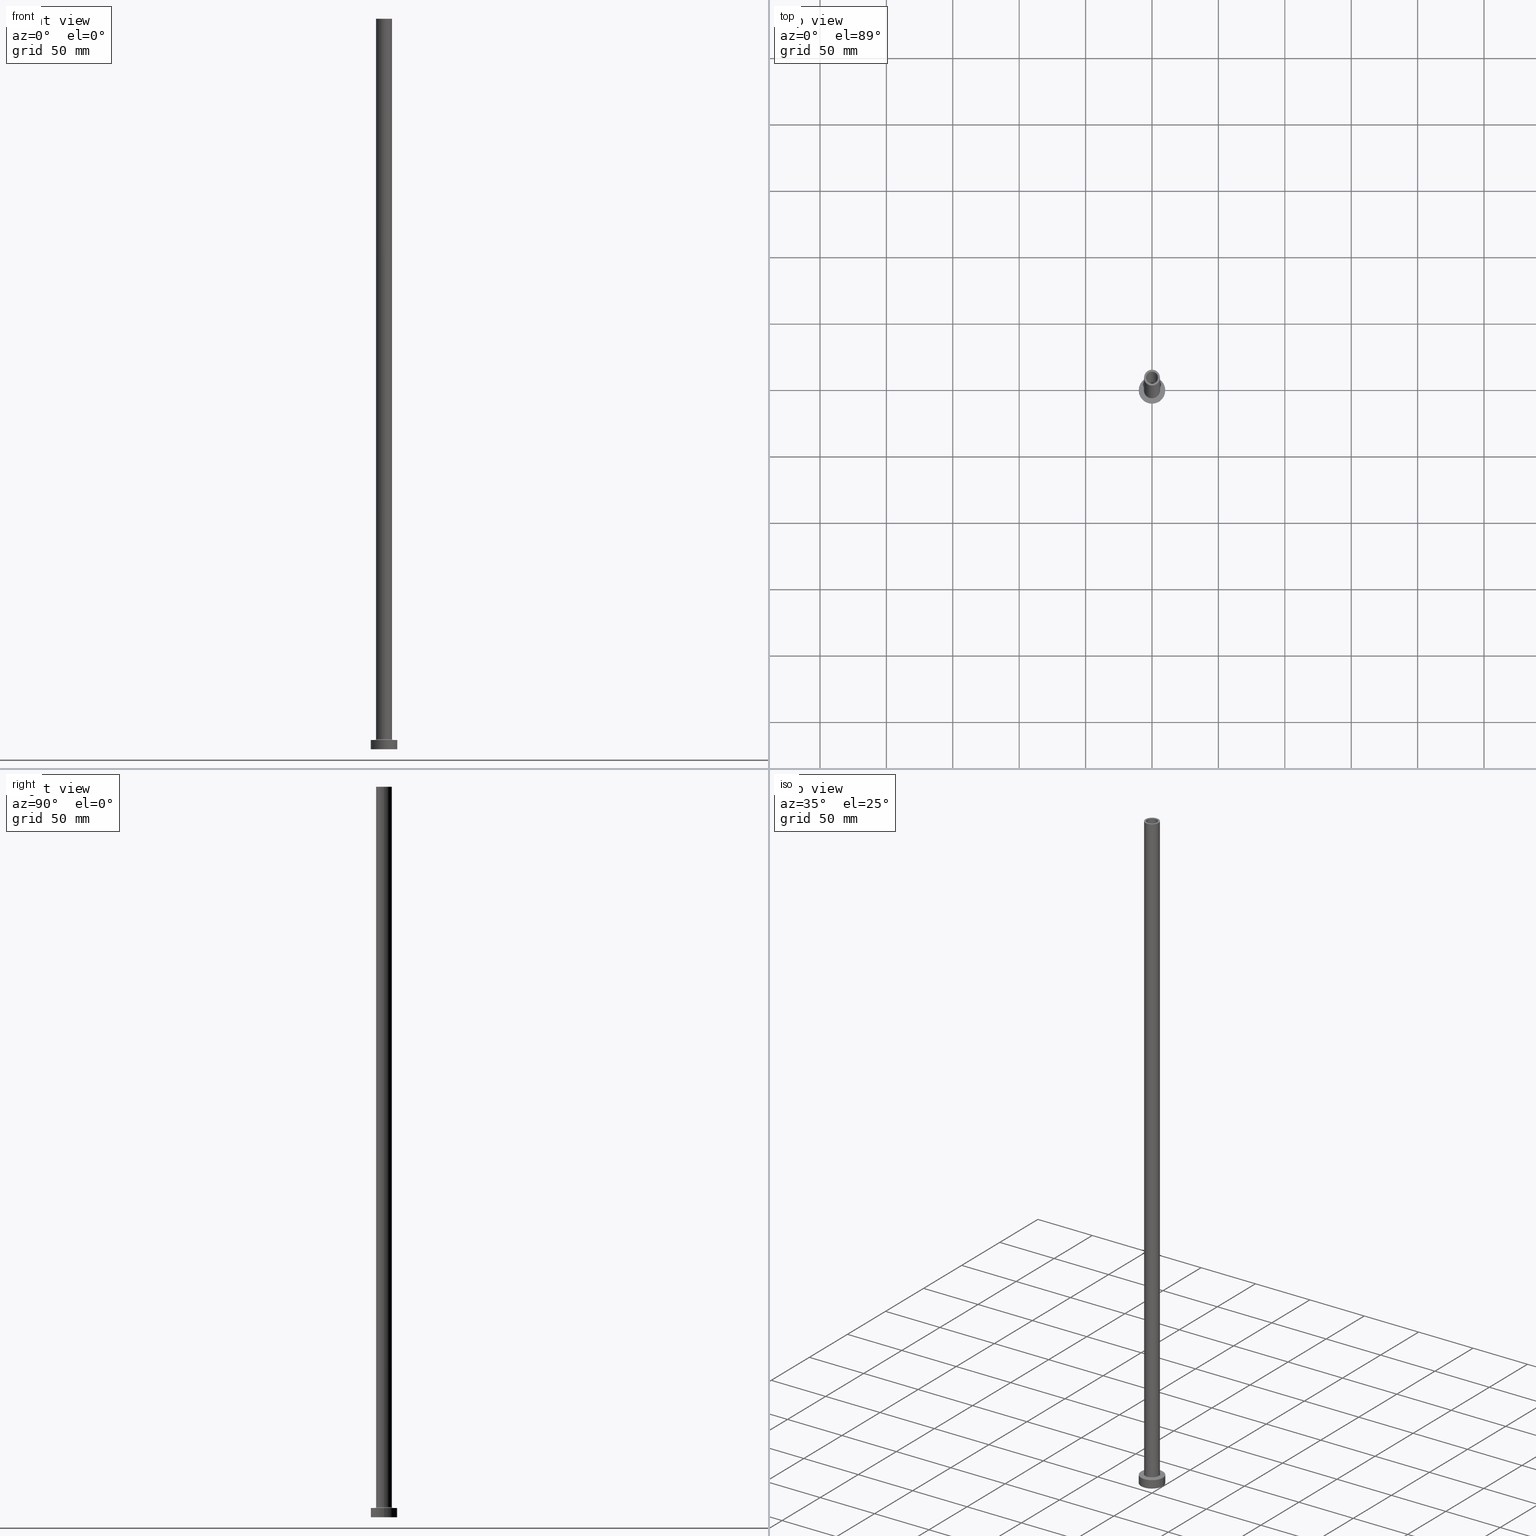
[diagram: canonical four-view strip — front | top / right | iso, engineering-drawing reading convention]
A machine part, canonical four-view strip (front | top / right | iso — engineering-drawing reading convention). The complete STEP part file that produces these views, byte-faithful:
ISO-10303-21;
HEADER;
FILE_DESCRIPTION (( 'STEP AP203' ),
    '1' );
FILE_NAME ('14af.STEP',
    '2023-02-13T11:00:32',
    ( '' ),
    ( '' ),
    'SwSTEP 2.0',
    'SolidWorks 2019',
    '' );
FILE_SCHEMA (( 'CONFIG_CONTROL_DESIGN' ));
ENDSEC;

DATA;
#1 = APPROVAL ( #42, 'NEUR�EN�' ) ;
#2 = DIRECTION ( 'NONE',  ( -1.000000000000000000, 0.000000000000000000, 0.000000000000000000 ) ) ;
#3 = ORIENTED_EDGE ( 'NONE', *, *, #52, .T. ) ;
#4 = DIRECTION ( 'NONE',  ( 0.000000000000000000, 0.000000000000000000, 1.000000000000000000 ) ) ;
#5 = AXIS2_PLACEMENT_3D ( 'NONE', #289, #68, #391 ) ;
#6 = AXIS2_PLACEMENT_3D ( 'NONE', #76, #360, #112 ) ;
#7 = PERSON_AND_ORGANIZATION ( #422, #248 ) ;
#8 = ADVANCED_FACE ( 'NONE', ( #392 ), #425, .F. ) ;
#9 = VERTEX_POINT ( 'NONE', #423 ) ;
#10 = DIRECTION ( 'NONE',  ( 1.000000000000000000, 0.000000000000000000, 0.000000000000000000 ) ) ;
#11 = DATE_TIME_ROLE ( 'classification_date' ) ;
#12 = DIRECTION ( 'NONE',  ( 0.000000000000000000, 0.000000000000000000, 1.000000000000000000 ) ) ;
#13 = CARTESIAN_POINT ( 'NONE',  ( 0.000000000000000000, 0.000000000000000000, 7.700000000000040146 ) ) ;
#14 = AXIS2_PLACEMENT_3D ( 'NONE', #55, #224, #442 ) ;
#15 = AXIS2_PLACEMENT_3D ( 'NONE', #437, #370, #265 ) ;
#16 = DIRECTION ( 'NONE',  ( 0.000000000000000000, 0.000000000000000000, -1.000000000000000000 ) ) ;
#17 = EDGE_CURVE ( 'NONE', #28, #147, #372, .T. ) ;
#18 = LINE ( 'NONE', #133, #216 ) ;
#19 = CARTESIAN_POINT ( 'NONE',  ( 0.000000000000000000, 0.000000000000000000, 7.000000000000000000 ) ) ;
#20 = EDGE_CURVE ( 'NONE', #378, #431, #281, .T. ) ;
#21 = AXIS2_PLACEMENT_3D ( 'NONE', #421, #320, #322 ) ;
#22 = DIRECTION ( 'NONE',  ( 1.000000000000000000, 0.000000000000000000, 0.000000000000000000 ) ) ;
#23 = DIRECTION ( 'NONE',  ( 1.000000000000000000, 0.000000000000000000, 0.000000000000000000 ) ) ;
#24 = CYLINDRICAL_SURFACE ( 'NONE', #424, 4.500000000000000000 ) ;
#25 = ADVANCED_BREP_SHAPE_REPRESENTATION ( '14af', ( #275, #447 ), #236 ) ;
#26 = APPROVAL_ROLE ( '' ) ;
#27 = CIRCLE ( 'NONE', #297, 4.650000000000000355 ) ;
#28 = VERTEX_POINT ( 'NONE', #105 ) ;
#29 = ADVANCED_FACE ( 'NONE', ( #209 ), #217, .T. ) ;
#30 = APPLICATION_CONTEXT ( 'configuration controlled 3d designs of mechanical parts and assemblies' ) ;
#31 = DIRECTION ( 'NONE',  ( 1.224646799147353207E-16, 1.000000000000000000, -0.000000000000000000 ) ) ;
#32 = CARTESIAN_POINT ( 'NONE',  ( 0.000000000000000000, 0.000000000000000000, 7.000000000000000000 ) ) ;
#33 = EDGE_CURVE ( 'NONE', #376, #28, #453, .T. ) ;
#34 = DIRECTION ( 'NONE',  ( -0.000000000000000000, -0.000000000000000000, -1.000000000000000000 ) ) ;
#35 = AXIS2_PLACEMENT_3D ( 'NONE', #71, #396, #174 ) ;
#36 = CIRCLE ( 'NONE', #188, 6.700000000000001066 ) ;
#37 = LOCAL_TIME ( 12, 0, 32.00000000000000000, #109 ) ;
#38 = DESIGN_CONTEXT ( 'detailed design', #30, 'design' ) ;
#39 = CARTESIAN_POINT ( 'NONE',  ( 4.650000000000000355, 5.694607616035192869E-16, 505.0000000000000000 ) ) ;
#40 = DIRECTION ( 'NONE',  ( 0.000000000000000000, 0.000000000000000000, 1.000000000000000000 ) ) ;
#41 = APPROVAL ( #337, 'NEUR�EN�' ) ;
#42 = APPROVAL_STATUS ( 'not_yet_approved' ) ;
#43 = VERTEX_POINT ( 'NONE', #148 ) ;
#44 = CARTESIAN_POINT ( 'NONE',  ( 6.000000000000000888, 7.347880794884120722E-16, 550.0000000000000000 ) ) ;
#45 = ORIENTED_EDGE ( 'NONE', *, *, #252, .F. ) ;
#46 = TOROIDAL_SURFACE ( 'NONE', #196, 6.700000000000001066, 0.6999999999999999556 ) ;
#47 = PERSON_AND_ORGANIZATION ( #422, #248 ) ;
#48 = CC_DESIGN_APPROVAL ( #1, ( #362 ) ) ;
#49 = FACE_BOUND ( 'NONE', #171, .T. ) ;
#50 = DIRECTION ( 'NONE',  ( 0.000000000000000000, 0.000000000000000000, 1.000000000000000000 ) ) ;
#51 = ORIENTED_EDGE ( 'NONE', *, *, #408, .F. ) ;
#52 = EDGE_CURVE ( 'NONE', #327, #378, #354, .T. ) ;
#53 = PLANE ( 'NONE',  #15 ) ;
#54 = AXIS2_PLACEMENT_3D ( 'NONE', #459, #72, #144 ) ;
#55 = CARTESIAN_POINT ( 'NONE',  ( 0.000000000000000000, 0.000000000000000000, 7.000000000000000000 ) ) ;
#56 = LINE ( 'NONE', #94, #228 ) ;
#57 = ADVANCED_FACE ( 'NONE', ( #457, #177 ), #108, .F. ) ;
#58 = DIRECTION ( 'NONE',  ( -0.000000000000000000, -0.000000000000000000, -1.000000000000000000 ) ) ;
#59 = AXIS2_PLACEMENT_3D ( 'NONE', #13, #162, #234 ) ;
#60 = DIRECTION ( 'NONE',  ( 0.000000000000000000, 0.000000000000000000, 1.000000000000000000 ) ) ;
#61 = DIRECTION ( 'NONE',  ( 1.000000000000000000, 0.000000000000000000, 0.000000000000000000 ) ) ;
#62 = ORIENTED_EDGE ( 'NONE', *, *, #262, .T. ) ;
#63 = COORDINATED_UNIVERSAL_TIME_OFFSET ( 1, 0, .AHEAD. ) ;
#64 = PRODUCT_RELATED_PRODUCT_CATEGORY ( 'detail', '', ( #415 ) ) ;
#65 = ORIENTED_EDGE ( 'NONE', *, *, #180, .F. ) ;
#66 = AXIS2_PLACEMENT_3D ( 'NONE', #456, #245, #2 ) ;
#67 = FACE_OUTER_BOUND ( 'NONE', #231, .T. ) ;
#68 = DIRECTION ( 'NONE',  ( 0.000000000000000000, 0.000000000000000000, -1.000000000000000000 ) ) ;
#69 = EDGE_LOOP ( 'NONE', ( #273, #3, #183, #206 ) ) ;
#70 = EDGE_CURVE ( 'NONE', #214, #142, #172, .T. ) ;
#71 = CARTESIAN_POINT ( 'NONE',  ( 6.700000000000001066, 0.000000000000000000, 7.700000000000040146 ) ) ;
#72 = DIRECTION ( 'NONE',  ( 0.000000000000000000, 0.000000000000000000, 1.000000000000000000 ) ) ;
#73 = TOROIDAL_SURFACE ( 'NONE', #59, 6.700000000000001066, 0.6999999999999999556 ) ;
#74 = DATE_AND_TIME ( #182, #37 ) ;
#75 = EDGE_LOOP ( 'NONE', ( #222, #292, #282, #325 ) ) ;
#76 = CARTESIAN_POINT ( 'NONE',  ( 0.000000000000000000, 0.000000000000000000, 505.0000000000000000 ) ) ;
#77 = APPROVAL_DATE_TIME ( #219, #41 ) ;
#78 = DIRECTION ( 'NONE',  ( 0.000000000000000000, 0.000000000000000000, 1.000000000000000000 ) ) ;
#79 = DATE_AND_TIME ( #400, #382 ) ;
#80 = CARTESIAN_POINT ( 'NONE',  ( 0.000000000000000000, 0.000000000000000000, 505.0000000000000000 ) ) ;
#81 = VECTOR ( 'NONE', #34, 1000.000000000000000 ) ;
#82 = CARTESIAN_POINT ( 'NONE',  ( 0.000000000000000000, 0.000000000000000000, 0.000000000000000000 ) ) ;
#83 = ORIENTED_EDGE ( 'NONE', *, *, #332, .F. ) ;
#84 = EDGE_CURVE ( 'NONE', #376, #101, #351, .T. ) ;
#85 = DIRECTION ( 'NONE',  ( 0.000000000000000000, 0.000000000000000000, 1.000000000000000000 ) ) ;
#86 = VERTEX_POINT ( 'NONE', #39 ) ;
#87 = CARTESIAN_POINT ( 'NONE',  ( 0.000000000000000000, 0.000000000000000000, 0.000000000000000000 ) ) ;
#88 = EDGE_LOOP ( 'NONE', ( #240, #369, #193, #161 ) ) ;
#89 = AXIS2_PLACEMENT_3D ( 'NONE', #385, #90, #316 ) ;
#90 = DIRECTION ( 'NONE',  ( 0.000000000000000000, 0.000000000000000000, 1.000000000000000000 ) ) ;
#91 = EDGE_CURVE ( 'NONE', #101, #147, #36, .T. ) ;
#92 = ORIENTED_EDGE ( 'NONE', *, *, #430, .F. ) ;
#93 = CARTESIAN_POINT ( 'NONE',  ( 0.000000000000000000, 0.000000000000000000, 550.0000000000000000 ) ) ;
#94 = CARTESIAN_POINT ( 'NONE',  ( -10.00000000000000000, 0.000000000000000000, 7.000000000000000000 ) ) ;
#95 = AXIS2_PLACEMENT_3D ( 'NONE', #243, #443, #132 ) ;
#96 = FACE_OUTER_BOUND ( 'NONE', #184, .T. ) ;
#97 = ADVANCED_FACE ( 'NONE', ( #103 ), #329, .F. ) ;
#98 = CARTESIAN_POINT ( 'NONE',  ( 0.000000000000000000, 0.000000000000000000, 0.000000000000000000 ) ) ;
#99 = COORDINATED_UNIVERSAL_TIME_OFFSET ( 1, 0, .AHEAD. ) ;
#100 = DIRECTION ( 'NONE',  ( 1.000000000000000000, 0.000000000000000000, 0.000000000000000000 ) ) ;
#101 = VERTEX_POINT ( 'NONE', #295 ) ;
#102 = CIRCLE ( 'NONE', #269, 10.00000000000000000 ) ;
#103 = FACE_OUTER_BOUND ( 'NONE', #75, .T. ) ;
#104 = EDGE_CURVE ( 'NONE', #225, #376, #432, .T. ) ;
#105 = CARTESIAN_POINT ( 'NONE',  ( 6.000000000000000888, 7.347880794884120722E-16, 7.700000000000040146 ) ) ;
#106 = ORIENTED_EDGE ( 'NONE', *, *, #180, .T. ) ;
#107 = UNCERTAINTY_MEASURE_WITH_UNIT (LENGTH_MEASURE( 1.000000000000000082E-05 ), #280, 'distance_accuracy_value', 'NONE');
#108 = PLANE ( 'NONE',  #6 ) ;
#109 = COORDINATED_UNIVERSAL_TIME_OFFSET ( 1, 0, .AHEAD. ) ;
#110 = EDGE_LOOP ( 'NONE', ( #127, #296, #116, #250 ) ) ;
#111 = CLOSED_SHELL ( 'NONE', ( #348, #8, #169, #449, #135, #29, #271, #355, #402, #343, #307, #97, #57, #123 ) ) ;
#112 = DIRECTION ( 'NONE',  ( 1.000000000000000000, 0.000000000000000000, -0.000000000000000000 ) ) ;
#113 = CIRCLE ( 'NONE', #207, 6.000000000000000888 ) ;
#114 = CC_DESIGN_APPROVAL ( #41, ( #324 ) ) ;
#115 = DIRECTION ( 'NONE',  ( 0.000000000000000000, 0.000000000000000000, 1.000000000000000000 ) ) ;
#116 = ORIENTED_EDGE ( 'NONE', *, *, #395, .T. ) ;
#117 = EDGE_CURVE ( 'NONE', #327, #195, #346, .T. ) ;
#118 = FACE_OUTER_BOUND ( 'NONE', #255, .T. ) ;
#119 = PERSON_AND_ORGANIZATION ( #422, #248 ) ;
#120 = LINE ( 'NONE', #401, #359 ) ;
#121 = PERSON_AND_ORGANIZATION_ROLE ( 'design_supplier' ) ;
#122 = DIRECTION ( 'NONE',  ( -1.000000000000000000, 0.000000000000000000, 0.000000000000000000 ) ) ;
#123 = ADVANCED_FACE ( 'NONE', ( #67 ), #287, .F. ) ;
#124 = CIRCLE ( 'NONE', #95, 4.500000000000000000 ) ;
#125 = LOCAL_TIME ( 12, 0, 32.00000000000000000, #303 ) ;
#126 = ORIENTED_EDGE ( 'NONE', *, *, #368, .T. ) ;
#127 = ORIENTED_EDGE ( 'NONE', *, *, #52, .F. ) ;
#128 = DIRECTION ( 'NONE',  ( 0.000000000000000000, 0.000000000000000000, -1.000000000000000000 ) ) ;
#129 = ORIENTED_EDGE ( 'NONE', *, *, #33, .F. ) ;
#130 = DIRECTION ( 'NONE',  ( 1.000000000000000000, 0.000000000000000000, 0.000000000000000000 ) ) ;
#131 = ORIENTED_EDGE ( 'NONE', *, *, #84, .T. ) ;
#132 = DIRECTION ( 'NONE',  ( 1.000000000000000000, 0.000000000000000000, 0.000000000000000000 ) ) ;
#133 = CARTESIAN_POINT ( 'NONE',  ( 4.500000000000000000, 5.510910596163088569E-16, 550.0000000000000000 ) ) ;
#134 = DIRECTION ( 'NONE',  ( -0.000000000000000000, -0.000000000000000000, -1.000000000000000000 ) ) ;
#135 = ADVANCED_FACE ( 'NONE', ( #305 ), #441, .T. ) ;
#136 = AXIS2_PLACEMENT_3D ( 'NONE', #230, #85, #407 ) ;
#137 = AXIS2_PLACEMENT_3D ( 'NONE', #342, #58, #23 ) ;
#138 =( NAMED_UNIT ( * ) PLANE_ANGLE_UNIT ( ) SI_UNIT ( $, .RADIAN. ) );
#139 = APPROVAL_DATE_TIME ( #350, #387 ) ;
#140 = DIRECTION ( 'NONE',  ( 1.000000000000000000, 0.000000000000000000, 0.000000000000000000 ) ) ;
#141 = DIRECTION ( 'NONE',  ( -0.000000000000000000, -0.000000000000000000, -1.000000000000000000 ) ) ;
#142 = VERTEX_POINT ( 'NONE', #301 ) ;
#143 = AXIS2_PLACEMENT_3D ( 'NONE', #82, #336, #130 ) ;
#144 = DIRECTION ( 'NONE',  ( 1.000000000000000000, 0.000000000000000000, 0.000000000000000000 ) ) ;
#145 = DIRECTION ( 'NONE',  ( 0.000000000000000000, 0.000000000000000000, 1.000000000000000000 ) ) ;
#146 = APPROVAL_ROLE ( '' ) ;
#147 = VERTEX_POINT ( 'NONE', #272 ) ;
#148 = CARTESIAN_POINT ( 'NONE',  ( 6.000000000000000888, 7.347880794884120722E-16, 550.0000000000000000 ) ) ;
#149 = CC_DESIGN_PERSON_AND_ORGANIZATION_ASSIGNMENT ( #47, #121, ( #324 ) ) ;
#150 = APPROVAL_DATE_TIME ( #74, #1 ) ;
#151 = FACE_OUTER_BOUND ( 'NONE', #294, .T. ) ;
#152 = ORIENTED_EDGE ( 'NONE', *, *, #339, .F. ) ;
#153 = CIRCLE ( 'NONE', #137, 4.650000000000000355 ) ;
#154 = ORIENTED_EDGE ( 'NONE', *, *, #368, .F. ) ;
#155 = SECURITY_CLASSIFICATION ( '', '', #221 ) ;
#156 = DATE_AND_TIME ( #333, #352 ) ;
#157 = DIRECTION ( 'NONE',  ( -0.000000000000000000, -0.000000000000000000, -1.000000000000000000 ) ) ;
#158 = PERSON_AND_ORGANIZATION ( #422, #248 ) ;
#159 = EDGE_CURVE ( 'NONE', #142, #9, #120, .T. ) ;
#160 = CARTESIAN_POINT ( 'NONE',  ( 0.000000000000000000, 0.000000000000000000, 550.0000000000000000 ) ) ;
#161 = ORIENTED_EDGE ( 'NONE', *, *, #33, .T. ) ;
#162 = DIRECTION ( 'NONE',  ( 0.000000000000000000, 0.000000000000000000, 1.000000000000000000 ) ) ;
#163 = CC_DESIGN_SECURITY_CLASSIFICATION ( #155, ( #324 ) ) ;
#164 = CARTESIAN_POINT ( 'NONE',  ( 4.500000000000000000, 5.510910596163088569E-16, 550.0000000000000000 ) ) ;
#165 = CARTESIAN_POINT ( 'NONE',  ( -6.000000000000000888, 0.000000000000000000, 7.700000000000040146 ) ) ;
#166 = CIRCLE ( 'NONE', #393, 4.500000000000000000 ) ;
#167 = DIRECTION ( 'NONE',  ( 0.000000000000000000, 0.000000000000000000, 1.000000000000000000 ) ) ;
#168 = FACE_BOUND ( 'NONE', #390, .T. ) ;
#169 = ADVANCED_FACE ( 'NONE', ( #434 ), #46, .F. ) ;
#170 = DIRECTION ( 'NONE',  ( 0.000000000000000000, 0.000000000000000000, -1.000000000000000000 ) ) ;
#171 = EDGE_LOOP ( 'NONE', ( #126, #353 ) ) ;
#172 = CIRCLE ( 'NONE', #247, 4.500000000000000000 ) ;
#173 = PERSON_AND_ORGANIZATION_ROLE ( 'creator' ) ;
#174 = DIRECTION ( 'NONE',  ( 0.000000000000000000, 0.000000000000000000, -1.000000000000000000 ) ) ;
#175 = ORIENTED_EDGE ( 'NONE', *, *, #321, .T. ) ;
#176 = AXIS2_PLACEMENT_3D ( 'NONE', #32, #251, #211 ) ;
#177 = FACE_OUTER_BOUND ( 'NONE', #411, .T. ) ;
#178 = ORIENTED_EDGE ( 'NONE', *, *, #104, .F. ) ;
#179 = CARTESIAN_POINT ( 'NONE',  ( 0.000000000000000000, 0.000000000000000000, 7.000000000000000000 ) ) ;
#180 = EDGE_CURVE ( 'NONE', #43, #225, #113, .T. ) ;
#181 = ORIENTED_EDGE ( 'NONE', *, *, #290, .T. ) ;
#182 = CALENDAR_DATE ( 2023, 13, 2 ) ;
#183 = ORIENTED_EDGE ( 'NONE', *, *, #20, .T. ) ;
#184 = EDGE_LOOP ( 'NONE', ( #62, #106 ) ) ;
#185 = EDGE_LOOP ( 'NONE', ( #65, #458, #397, #178 ) ) ;
#186 = DATE_TIME_ROLE ( 'creation_date' ) ;
#187 = CARTESIAN_POINT ( 'NONE',  ( -4.650000000000000355, 0.000000000000000000, 505.0000000000000000 ) ) ;
#188 = AXIS2_PLACEMENT_3D ( 'NONE', #179, #141, #100 ) ;
#189 = APPLICATION_PROTOCOL_DEFINITION ( 'international standard', 'config_control_design', 1994, #30 ) ;
#190 = CC_DESIGN_PERSON_AND_ORGANIZATION_ASSIGNMENT ( #119, #455, ( #155 ) ) ;
#191 = DIRECTION ( 'NONE',  ( 0.000000000000000000, 0.000000000000000000, 1.000000000000000000 ) ) ;
#192 = DIRECTION ( 'NONE',  ( 1.000000000000000000, 0.000000000000000000, 0.000000000000000000 ) ) ;
#193 = ORIENTED_EDGE ( 'NONE', *, *, #104, .T. ) ;
#194 = LINE ( 'NONE', #405, #365 ) ;
#195 = VERTEX_POINT ( 'NONE', #331 ) ;
#196 = AXIS2_PLACEMENT_3D ( 'NONE', #298, #270, #374 ) ;
#197 = DIRECTION ( 'NONE',  ( -0.000000000000000000, -0.000000000000000000, -1.000000000000000000 ) ) ;
#198 = EDGE_CURVE ( 'NONE', #249, #86, #373, .T. ) ;
#199 = DIRECTION ( 'NONE',  ( -1.000000000000000000, 0.000000000000000000, 0.000000000000000000 ) ) ;
#200 = FACE_OUTER_BOUND ( 'NONE', #302, .T. ) ;
#201 = VECTOR ( 'NONE', #157, 1000.000000000000000 ) ;
#202 = EDGE_CURVE ( 'NONE', #249, #389, #194, .T. ) ;
#203 = DIRECTION ( 'NONE',  ( -1.000000000000000000, 0.000000000000000000, 0.000000000000000000 ) ) ;
#204 = CARTESIAN_POINT ( 'NONE',  ( -4.650000000000000355, 0.000000000000000000, 0.000000000000000000 ) ) ;
#205 = CALENDAR_DATE ( 2023, 13, 2 ) ;
#206 = ORIENTED_EDGE ( 'NONE', *, *, #395, .F. ) ;
#207 = AXIS2_PLACEMENT_3D ( 'NONE', #160, #78, #268 ) ;
#208 = DIRECTION ( 'NONE',  ( 0.000000000000000000, 0.000000000000000000, -1.000000000000000000 ) ) ;
#209 = FACE_OUTER_BOUND ( 'NONE', #110, .T. ) ;
#210 = ORIENTED_EDGE ( 'NONE', *, *, #117, .T. ) ;
#211 = DIRECTION ( 'NONE',  ( -1.000000000000000000, 0.000000000000000000, 0.000000000000000000 ) ) ;
#212 = ORIENTED_EDGE ( 'NONE', *, *, #252, .T. ) ;
#213 = PRODUCT_DEFINITION_SHAPE ( 'NONE', 'NONE',  #362 ) ;
#214 = VERTEX_POINT ( 'NONE', #164 ) ;
#215 = EDGE_CURVE ( 'NONE', #28, #376, #235, .T. ) ;
#216 = VECTOR ( 'NONE', #170, 1000.000000000000000 ) ;
#217 = CYLINDRICAL_SURFACE ( 'NONE', #176, 10.00000000000000000 ) ;
#218 = APPROVAL_PERSON_ORGANIZATION ( #158, #387, #26 ) ;
#219 = DATE_AND_TIME ( #260, #125 ) ;
#220 = DIRECTION ( 'NONE',  ( -0.000000000000000000, -0.000000000000000000, -1.000000000000000000 ) ) ;
#221 = SECURITY_CLASSIFICATION_LEVEL ( 'unclassified' ) ;
#222 = ORIENTED_EDGE ( 'NONE', *, *, #321, .F. ) ;
#223 = ORIENTED_EDGE ( 'NONE', *, *, #70, .T. ) ;
#224 = DIRECTION ( 'NONE',  ( -0.000000000000000000, -0.000000000000000000, -1.000000000000000000 ) ) ;
#225 = VERTEX_POINT ( 'NONE', #304 ) ;
#226 = EDGE_CURVE ( 'NONE', #356, #9, #381, .T. ) ;
#227 = LINE ( 'NONE', #44, #201 ) ;
#228 = VECTOR ( 'NONE', #134, 1000.000000000000000 ) ;
#229 = EDGE_LOOP ( 'NONE', ( #315, #427 ) ) ;
#230 = CARTESIAN_POINT ( 'NONE',  ( 0.000000000000000000, 0.000000000000000000, 550.0000000000000000 ) ) ;
#231 = EDGE_LOOP ( 'NONE', ( #92, #223, #429, #300 ) ) ;
#232 = CARTESIAN_POINT ( 'NONE',  ( 4.650000000000000355, 5.694607616035192869E-16, 0.000000000000000000 ) ) ;
#233 = CC_DESIGN_PERSON_AND_ORGANIZATION_ASSIGNMENT ( #435, #173, ( #324 ) ) ;
#234 = DIRECTION ( 'NONE',  ( 1.000000000000000000, 0.000000000000000000, 0.000000000000000000 ) ) ;
#235 = CIRCLE ( 'NONE', #409, 6.000000000000000888 ) ;
#236 =( GEOMETRIC_REPRESENTATION_CONTEXT ( 3 ) GLOBAL_UNCERTAINTY_ASSIGNED_CONTEXT ( ( #107 ) ) GLOBAL_UNIT_ASSIGNED_CONTEXT ( ( #280, #138, #410 ) ) REPRESENTATION_CONTEXT ( 'NONE', 'WORKASPACE' ) );
#237 = DIRECTION ( 'NONE',  ( 0.000000000000000000, 0.000000000000000000, -1.000000000000000000 ) ) ;
#238 = FACE_OUTER_BOUND ( 'NONE', #185, .T. ) ;
#239 = EDGE_CURVE ( 'NONE', #43, #28, #227, .T. ) ;
#240 = ORIENTED_EDGE ( 'NONE', *, *, #239, .F. ) ;
#241 = AXIS2_PLACEMENT_3D ( 'NONE', #98, #413, #384 ) ;
#242 = CARTESIAN_POINT ( 'NONE',  ( 10.00000000000000000, 1.224646799147353256E-15, 0.000000000000000000 ) ) ;
#243 = CARTESIAN_POINT ( 'NONE',  ( 0.000000000000000000, 0.000000000000000000, 550.0000000000000000 ) ) ;
#244 = CC_DESIGN_DATE_AND_TIME_ASSIGNMENT ( #79, #11, ( #155 ) ) ;
#245 = DIRECTION ( 'NONE',  ( 0.000000000000000000, 0.000000000000000000, -1.000000000000000000 ) ) ;
#246 = ORIENTED_EDGE ( 'NONE', *, *, #70, .F. ) ;
#247 = AXIS2_PLACEMENT_3D ( 'NONE', #461, #145, #291 ) ;
#248 = ORGANIZATION ( 'NEUR�EN�', 'NEUR�EN�', '' ) ;
#249 = VERTEX_POINT ( 'NONE', #187 ) ;
#250 = ORIENTED_EDGE ( 'NONE', *, *, #277, .T. ) ;
#251 = DIRECTION ( 'NONE',  ( -0.000000000000000000, -0.000000000000000000, -1.000000000000000000 ) ) ;
#252 = EDGE_CURVE ( 'NONE', #261, #389, #274, .T. ) ;
#253 = DIRECTION ( 'NONE',  ( -1.000000000000000000, 1.224646799147353454E-16, 0.000000000000000000 ) ) ;
#254 = PERSON_AND_ORGANIZATION ( #422, #248 ) ;
#255 = EDGE_LOOP ( 'NONE', ( #181, #210 ) ) ;
#256 = VECTOR ( 'NONE', #237, 1000.000000000000000 ) ;
#257 = AXIS2_PLACEMENT_3D ( 'NONE', #278, #414, #203 ) ;
#258 = CARTESIAN_POINT ( 'NONE',  ( -6.000000000000000888, 0.000000000000000000, 550.0000000000000000 ) ) ;
#259 = ORIENTED_EDGE ( 'NONE', *, *, #20, .F. ) ;
#260 = CALENDAR_DATE ( 2023, 13, 2 ) ;
#261 = VERTEX_POINT ( 'NONE', #232 ) ;
#262 = EDGE_CURVE ( 'NONE', #225, #43, #403, .T. ) ;
#263 = CARTESIAN_POINT ( 'NONE',  ( 0.000000000000000000, 0.000000000000000000, 7.000000000000000000 ) ) ;
#264 = COORDINATED_UNIVERSAL_TIME_OFFSET ( 1, 0, .AHEAD. ) ;
#265 = DIRECTION ( 'NONE',  ( 1.000000000000000000, 0.000000000000000000, -0.000000000000000000 ) ) ;
#266 = ORIENTED_EDGE ( 'NONE', *, *, #408, .T. ) ;
#267 = APPROVAL_STATUS ( 'not_yet_approved' ) ;
#268 = DIRECTION ( 'NONE',  ( 1.000000000000000000, 0.000000000000000000, 0.000000000000000000 ) ) ;
#269 = AXIS2_PLACEMENT_3D ( 'NONE', #263, #50, #192 ) ;
#270 = DIRECTION ( 'NONE',  ( 0.000000000000000000, 0.000000000000000000, 1.000000000000000000 ) ) ;
#271 = ADVANCED_FACE ( 'NONE', ( #49, #118 ), #53, .T. ) ;
#272 = CARTESIAN_POINT ( 'NONE',  ( 6.700000000000001066, 0.000000000000000000, 7.000000000000020428 ) ) ;
#273 = ORIENTED_EDGE ( 'NONE', *, *, #117, .F. ) ;
#274 = CIRCLE ( 'NONE', #143, 4.650000000000000355 ) ;
#275 = MANIFOLD_SOLID_BREP ( 'Odebrat vysunut�m4', #111 ) ;
#276 = DIRECTION ( 'NONE',  ( -1.000000000000000000, 0.000000000000000000, 0.000000000000000000 ) ) ;
#277 = EDGE_CURVE ( 'NONE', #431, #378, #312, .T. ) ;
#278 = CARTESIAN_POINT ( 'NONE',  ( 0.000000000000000000, 0.000000000000000000, 550.0000000000000000 ) ) ;
#279 = ORIENTED_EDGE ( 'NONE', *, *, #198, .T. ) ;
#280 =( LENGTH_UNIT ( ) NAMED_UNIT ( * ) SI_UNIT ( .MILLI., .METRE. ) );
#281 = CIRCLE ( 'NONE', #21, 10.00000000000000000 ) ;
#282 = ORIENTED_EDGE ( 'NONE', *, *, #202, .T. ) ;
#283 = AXIS2_PLACEMENT_3D ( 'NONE', #338, #4, #366 ) ;
#284 = APPROVAL_PERSON_ORGANIZATION ( #394, #41, #433 ) ;
#285 = CYLINDRICAL_SURFACE ( 'NONE', #418, 6.000000000000000888 ) ;
#286 = SHAPE_DEFINITION_REPRESENTATION ( #213, #25 ) ;
#287 = CYLINDRICAL_SURFACE ( 'NONE', #440, 4.500000000000000000 ) ;
#288 = ORIENTED_EDGE ( 'NONE', *, *, #202, .F. ) ;
#289 = CARTESIAN_POINT ( 'NONE',  ( 0.000000000000000000, 0.000000000000000000, 518.1521861300698220 ) ) ;
#290 = EDGE_CURVE ( 'NONE', #195, #327, #102, .T. ) ;
#291 = DIRECTION ( 'NONE',  ( 1.000000000000000000, 0.000000000000000000, 0.000000000000000000 ) ) ;
#292 = ORIENTED_EDGE ( 'NONE', *, *, #339, .T. ) ;
#293 = MECHANICAL_CONTEXT ( 'NONE', #451, 'mechanical' ) ;
#294 = EDGE_LOOP ( 'NONE', ( #444, #328, #426, #367 ) ) ;
#295 = CARTESIAN_POINT ( 'NONE',  ( -6.700000000000001066, 8.205133554287267548E-16, 7.000000000000020428 ) ) ;
#296 = ORIENTED_EDGE ( 'NONE', *, *, #290, .F. ) ;
#297 = AXIS2_PLACEMENT_3D ( 'NONE', #347, #167, #22 ) ;
#298 = CARTESIAN_POINT ( 'NONE',  ( 0.000000000000000000, 0.000000000000000000, 7.700000000000040146 ) ) ;
#299 = PERSON_AND_ORGANIZATION ( #422, #248 ) ;
#300 = ORIENTED_EDGE ( 'NONE', *, *, #226, .F. ) ;
#301 = CARTESIAN_POINT ( 'NONE',  ( -4.500000000000000000, 0.000000000000000000, 550.0000000000000000 ) ) ;
#302 = EDGE_LOOP ( 'NONE', ( #266, #412, #83, #349 ) ) ;
#303 = COORDINATED_UNIVERSAL_TIME_OFFSET ( 1, 0, .AHEAD. ) ;
#304 = CARTESIAN_POINT ( 'NONE',  ( -6.000000000000000888, 0.000000000000000000, 550.0000000000000000 ) ) ;
#305 = FACE_OUTER_BOUND ( 'NONE', #69, .T. ) ;
#306 = AXIS2_PLACEMENT_3D ( 'NONE', #19, #197, #61 ) ;
#307 = ADVANCED_FACE ( 'NONE', ( #151 ), #73, .F. ) ;
#308 = CARTESIAN_POINT ( 'NONE',  ( 0.000000000000000000, 0.000000000000000000, 7.700000000000040146 ) ) ;
#309 = ORIENTED_EDGE ( 'NONE', *, *, #277, .F. ) ;
#310 = EDGE_LOOP ( 'NONE', ( #406, #45 ) ) ;
#311 = FACE_OUTER_BOUND ( 'NONE', #88, .T. ) ;
#312 = CIRCLE ( 'NONE', #460, 10.00000000000000000 ) ;
#313 = DIRECTION ( 'NONE',  ( 0.000000000000000000, 0.000000000000000000, -1.000000000000000000 ) ) ;
#314 = PLANE ( 'NONE',  #89 ) ;
#315 = ORIENTED_EDGE ( 'NONE', *, *, #332, .T. ) ;
#316 = DIRECTION ( 'NONE',  ( 1.000000000000000000, 0.000000000000000000, -0.000000000000000000 ) ) ;
#317 = CC_DESIGN_PERSON_AND_ORGANIZATION_ASSIGNMENT ( #7, #398, ( #362 ) ) ;
#318 = DIRECTION ( 'NONE',  ( 1.000000000000000000, 0.000000000000000000, 0.000000000000000000 ) ) ;
#319 = EDGE_LOOP ( 'NONE', ( #129, #131, #154, #438 ) ) ;
#320 = DIRECTION ( 'NONE',  ( 0.000000000000000000, 0.000000000000000000, 1.000000000000000000 ) ) ;
#321 = EDGE_CURVE ( 'NONE', #86, #261, #399, .T. ) ;
#322 = DIRECTION ( 'NONE',  ( 1.000000000000000000, 0.000000000000000000, 0.000000000000000000 ) ) ;
#323 = AXIS2_PLACEMENT_3D ( 'NONE', #80, #404, #10 ) ;
#324 = PRODUCT_DEFINITION_FORMATION_WITH_SPECIFIED_SOURCE ( 'LIBOVOLN�', '', #415, .NOT_KNOWN. ) ;
#325 = ORIENTED_EDGE ( 'NONE', *, *, #436, .T. ) ;
#326 = EDGE_LOOP ( 'NONE', ( #309, #259 ) ) ;
#327 = VERTEX_POINT ( 'NONE', #417 ) ;
#328 = ORIENTED_EDGE ( 'NONE', *, *, #215, .F. ) ;
#329 = CYLINDRICAL_SURFACE ( 'NONE', #66, 4.650000000000000355 ) ;
#330 = CARTESIAN_POINT ( 'NONE',  ( 0.000000000000000000, 0.000000000000000000, 0.000000000000000000 ) ) ;
#331 = CARTESIAN_POINT ( 'NONE',  ( -10.00000000000000000, 0.000000000000000000, 7.000000000000000000 ) ) ;
#332 = EDGE_CURVE ( 'NONE', #9, #356, #166, .T. ) ;
#333 = CALENDAR_DATE ( 2023, 13, 2 ) ;
#334 = AXIS2_PLACEMENT_3D ( 'NONE', #428, #31, #253 ) ;
#335 = LOCAL_TIME ( 12, 0, 32.00000000000000000, #63 ) ;
#336 = DIRECTION ( 'NONE',  ( -0.000000000000000000, -0.000000000000000000, -1.000000000000000000 ) ) ;
#337 = APPROVAL_STATUS ( 'not_yet_approved' ) ;
#338 = CARTESIAN_POINT ( 'NONE',  ( 0.000000000000000000, 0.000000000000000000, 505.0000000000000000 ) ) ;
#339 = EDGE_CURVE ( 'NONE', #86, #249, #27, .T. ) ;
#340 = CARTESIAN_POINT ( 'NONE',  ( 4.650000000000000355, 5.694607616035192869E-16, 518.1521861300698220 ) ) ;
#341 = AXIS2_PLACEMENT_3D ( 'NONE', #361, #40, #140 ) ;
#342 = CARTESIAN_POINT ( 'NONE',  ( 0.000000000000000000, 0.000000000000000000, 0.000000000000000000 ) ) ;
#343 = ADVANCED_FACE ( 'NONE', ( #168, #96 ), #314, .T. ) ;
#344 = CARTESIAN_POINT ( 'NONE',  ( 0.000000000000000000, 0.000000000000000000, 505.0000000000000000 ) ) ;
#345 = CARTESIAN_POINT ( 'NONE',  ( 0.000000000000000000, 0.000000000000000000, 550.0000000000000000 ) ) ;
#346 = CIRCLE ( 'NONE', #341, 10.00000000000000000 ) ;
#347 = CARTESIAN_POINT ( 'NONE',  ( 0.000000000000000000, 0.000000000000000000, 505.0000000000000000 ) ) ;
#348 = ADVANCED_FACE ( 'NONE', ( #200 ), #24, .F. ) ;
#349 = ORIENTED_EDGE ( 'NONE', *, *, #159, .F. ) ;
#350 = DATE_AND_TIME ( #205, #335 ) ;
#351 = CIRCLE ( 'NONE', #334, 0.7000000000000000666 ) ;
#352 = LOCAL_TIME ( 12, 0, 32.00000000000000000, #99 ) ;
#353 = ORIENTED_EDGE ( 'NONE', *, *, #91, .T. ) ;
#354 = LINE ( 'NONE', #357, #81 ) ;
#355 = ADVANCED_FACE ( 'NONE', ( #450, #420 ), #377, .F. ) ;
#356 = VERTEX_POINT ( 'NONE', #446 ) ;
#357 = CARTESIAN_POINT ( 'NONE',  ( 10.00000000000000000, 1.224646799147353256E-15, 7.000000000000000000 ) ) ;
#358 = ORIENTED_EDGE ( 'NONE', *, *, #198, .F. ) ;
#359 = VECTOR ( 'NONE', #16, 1000.000000000000000 ) ;
#360 = DIRECTION ( 'NONE',  ( 0.000000000000000000, 0.000000000000000000, 1.000000000000000000 ) ) ;
#361 = CARTESIAN_POINT ( 'NONE',  ( 0.000000000000000000, 0.000000000000000000, 7.000000000000000000 ) ) ;
#362 = PRODUCT_DEFINITION ( 'NEZN�M�', '', #324, #38 ) ;
#363 = APPLICATION_PROTOCOL_DEFINITION ( 'international standard', 'config_control_design', 1994, #451 ) ;
#364 = PERSON_AND_ORGANIZATION_ROLE ( 'design_owner' ) ;
#365 = VECTOR ( 'NONE', #128, 1000.000000000000000 ) ;
#366 = DIRECTION ( 'NONE',  ( 1.000000000000000000, 0.000000000000000000, 0.000000000000000000 ) ) ;
#367 = ORIENTED_EDGE ( 'NONE', *, *, #91, .F. ) ;
#368 = EDGE_CURVE ( 'NONE', #147, #101, #388, .T. ) ;
#369 = ORIENTED_EDGE ( 'NONE', *, *, #262, .F. ) ;
#370 = DIRECTION ( 'NONE',  ( 0.000000000000000000, 0.000000000000000000, 1.000000000000000000 ) ) ;
#371 = DIRECTION ( 'NONE',  ( 1.000000000000000000, 0.000000000000000000, 0.000000000000000000 ) ) ;
#372 = CIRCLE ( 'NONE', #35, 0.7000000000000000666 ) ;
#373 = CIRCLE ( 'NONE', #283, 4.650000000000000355 ) ;
#374 = DIRECTION ( 'NONE',  ( 1.000000000000000000, 0.000000000000000000, 0.000000000000000000 ) ) ;
#375 = APPROVAL_PERSON_ORGANIZATION ( #254, #1, #146 ) ;
#376 = VERTEX_POINT ( 'NONE', #165 ) ;
#377 = PLANE ( 'NONE',  #241 ) ;
#378 = VERTEX_POINT ( 'NONE', #242 ) ;
#379 = DIRECTION ( 'NONE',  ( 1.000000000000000000, 0.000000000000000000, 0.000000000000000000 ) ) ;
#380 = DIRECTION ( 'NONE',  ( -0.000000000000000000, -0.000000000000000000, -1.000000000000000000 ) ) ;
#381 = CIRCLE ( 'NONE', #323, 4.500000000000000000 ) ;
#382 = LOCAL_TIME ( 12, 0, 32.00000000000000000, #264 ) ;
#383 = CC_DESIGN_DATE_AND_TIME_ASSIGNMENT ( #156, #186, ( #362 ) ) ;
#384 = DIRECTION ( 'NONE',  ( 1.000000000000000000, 0.000000000000000000, -0.000000000000000000 ) ) ;
#385 = CARTESIAN_POINT ( 'NONE',  ( 0.000000000000000000, 0.000000000000000000, 550.0000000000000000 ) ) ;
#386 = CARTESIAN_POINT ( 'NONE',  ( 0.000000000000000000, 0.000000000000000000, 550.0000000000000000 ) ) ;
#387 = APPROVAL ( #267, 'NEUR�EN�' ) ;
#388 = CIRCLE ( 'NONE', #306, 6.700000000000001066 ) ;
#389 = VERTEX_POINT ( 'NONE', #204 ) ;
#390 = EDGE_LOOP ( 'NONE', ( #51, #246 ) ) ;
#391 = DIRECTION ( 'NONE',  ( -1.000000000000000000, 0.000000000000000000, 0.000000000000000000 ) ) ;
#392 = FACE_OUTER_BOUND ( 'NONE', #419, .T. ) ;
#393 = AXIS2_PLACEMENT_3D ( 'NONE', #344, #60, #379 ) ;
#394 = PERSON_AND_ORGANIZATION ( #422, #248 ) ;
#395 = EDGE_CURVE ( 'NONE', #195, #431, #56, .T. ) ;
#396 = DIRECTION ( 'NONE',  ( 0.000000000000000000, -1.000000000000000000, 0.000000000000000000 ) ) ;
#397 = ORIENTED_EDGE ( 'NONE', *, *, #215, .T. ) ;
#398 = PERSON_AND_ORGANIZATION_ROLE ( 'creator' ) ;
#399 = LINE ( 'NONE', #340, #256 ) ;
#400 = CALENDAR_DATE ( 2023, 13, 2 ) ;
#401 = CARTESIAN_POINT ( 'NONE',  ( -4.500000000000000000, 0.000000000000000000, 550.0000000000000000 ) ) ;
#402 = ADVANCED_FACE ( 'NONE', ( #311 ), #285, .T. ) ;
#403 = CIRCLE ( 'NONE', #136, 6.000000000000000888 ) ;
#404 = DIRECTION ( 'NONE',  ( 0.000000000000000000, 0.000000000000000000, 1.000000000000000000 ) ) ;
#405 = CARTESIAN_POINT ( 'NONE',  ( -4.650000000000000355, 0.000000000000000000, 518.1521861300698220 ) ) ;
#406 = ORIENTED_EDGE ( 'NONE', *, *, #436, .F. ) ;
#407 = DIRECTION ( 'NONE',  ( 1.000000000000000000, 0.000000000000000000, 0.000000000000000000 ) ) ;
#408 = EDGE_CURVE ( 'NONE', #142, #214, #124, .T. ) ;
#409 = AXIS2_PLACEMENT_3D ( 'NONE', #308, #12, #439 ) ;
#410 =( NAMED_UNIT ( * ) SI_UNIT ( $, .STERADIAN. ) SOLID_ANGLE_UNIT ( ) );
#411 = EDGE_LOOP ( 'NONE', ( #358, #152 ) ) ;
#412 = ORIENTED_EDGE ( 'NONE', *, *, #430, .T. ) ;
#413 = DIRECTION ( 'NONE',  ( 0.000000000000000000, 0.000000000000000000, 1.000000000000000000 ) ) ;
#414 = DIRECTION ( 'NONE',  ( -0.000000000000000000, -0.000000000000000000, -1.000000000000000000 ) ) ;
#415 = PRODUCT ( '14af', '14af', '', ( #293 ) ) ;
#416 = CC_DESIGN_PERSON_AND_ORGANIZATION_ASSIGNMENT ( #299, #364, ( #415 ) ) ;
#417 = CARTESIAN_POINT ( 'NONE',  ( 10.00000000000000000, 1.224646799147353256E-15, 7.000000000000000000 ) ) ;
#418 = AXIS2_PLACEMENT_3D ( 'NONE', #93, #380, #199 ) ;
#419 = EDGE_LOOP ( 'NONE', ( #279, #175, #212, #288 ) ) ;
#420 = FACE_OUTER_BOUND ( 'NONE', #326, .T. ) ;
#421 = CARTESIAN_POINT ( 'NONE',  ( 0.000000000000000000, 0.000000000000000000, 0.000000000000000000 ) ) ;
#422 = PERSON ( 'NEUR�EN�', 'NEUR�EN�', 'NEUR�EN�', ('NEUR�EN�'), ('NEUR�EN�'), ('NEUR�EN�') ) ;
#423 = CARTESIAN_POINT ( 'NONE',  ( -4.500000000000000000, 0.000000000000000000, 505.0000000000000000 ) ) ;
#424 = AXIS2_PLACEMENT_3D ( 'NONE', #345, #313, #276 ) ;
#425 = CYLINDRICAL_SURFACE ( 'NONE', #5, 4.650000000000000355 ) ;
#426 = ORIENTED_EDGE ( 'NONE', *, *, #17, .T. ) ;
#427 = ORIENTED_EDGE ( 'NONE', *, *, #226, .T. ) ;
#428 = CARTESIAN_POINT ( 'NONE',  ( -6.700000000000001066, 8.205133554287267548E-16, 7.700000000000040146 ) ) ;
#429 = ORIENTED_EDGE ( 'NONE', *, *, #159, .T. ) ;
#430 = EDGE_CURVE ( 'NONE', #214, #356, #18, .T. ) ;
#431 = VERTEX_POINT ( 'NONE', #448 ) ;
#432 = LINE ( 'NONE', #258, #445 ) ;
#433 = APPROVAL_ROLE ( '' ) ;
#434 = FACE_OUTER_BOUND ( 'NONE', #319, .T. ) ;
#435 = PERSON_AND_ORGANIZATION ( #422, #248 ) ;
#436 = EDGE_CURVE ( 'NONE', #389, #261, #153, .T. ) ;
#437 = CARTESIAN_POINT ( 'NONE',  ( 0.000000000000000000, 0.000000000000000000, 7.000000000000000000 ) ) ;
#438 = ORIENTED_EDGE ( 'NONE', *, *, #17, .F. ) ;
#439 = DIRECTION ( 'NONE',  ( 1.000000000000000000, 0.000000000000000000, 0.000000000000000000 ) ) ;
#440 = AXIS2_PLACEMENT_3D ( 'NONE', #386, #208, #122 ) ;
#441 = CYLINDRICAL_SURFACE ( 'NONE', #14, 10.00000000000000000 ) ;
#442 = DIRECTION ( 'NONE',  ( -1.000000000000000000, 0.000000000000000000, 0.000000000000000000 ) ) ;
#443 = DIRECTION ( 'NONE',  ( 0.000000000000000000, 0.000000000000000000, 1.000000000000000000 ) ) ;
#444 = ORIENTED_EDGE ( 'NONE', *, *, #84, .F. ) ;
#445 = VECTOR ( 'NONE', #220, 1000.000000000000000 ) ;
#446 = CARTESIAN_POINT ( 'NONE',  ( 4.500000000000000000, 5.510910596163088569E-16, 505.0000000000000000 ) ) ;
#447 = AXIS2_PLACEMENT_3D ( 'NONE', #330, #115, #318 ) ;
#448 = CARTESIAN_POINT ( 'NONE',  ( -10.00000000000000000, 0.000000000000000000, 0.000000000000000000 ) ) ;
#449 = ADVANCED_FACE ( 'NONE', ( #238 ), #452, .T. ) ;
#450 = FACE_BOUND ( 'NONE', #310, .T. ) ;
#451 = APPLICATION_CONTEXT ( 'configuration controlled 3d designs of mechanical parts and assemblies' ) ;
#452 = CYLINDRICAL_SURFACE ( 'NONE', #257, 6.000000000000000888 ) ;
#453 = CIRCLE ( 'NONE', #54, 6.000000000000000888 ) ;
#454 = CC_DESIGN_APPROVAL ( #387, ( #155 ) ) ;
#455 = PERSON_AND_ORGANIZATION_ROLE ( 'classification_officer' ) ;
#456 = CARTESIAN_POINT ( 'NONE',  ( 0.000000000000000000, 0.000000000000000000, 518.1521861300698220 ) ) ;
#457 = FACE_BOUND ( 'NONE', #229, .T. ) ;
#458 = ORIENTED_EDGE ( 'NONE', *, *, #239, .T. ) ;
#459 = CARTESIAN_POINT ( 'NONE',  ( 0.000000000000000000, 0.000000000000000000, 7.700000000000040146 ) ) ;
#460 = AXIS2_PLACEMENT_3D ( 'NONE', #87, #191, #371 ) ;
#461 = CARTESIAN_POINT ( 'NONE',  ( 0.000000000000000000, 0.000000000000000000, 550.0000000000000000 ) ) ;
ENDSEC;
END-ISO-10303-21;
